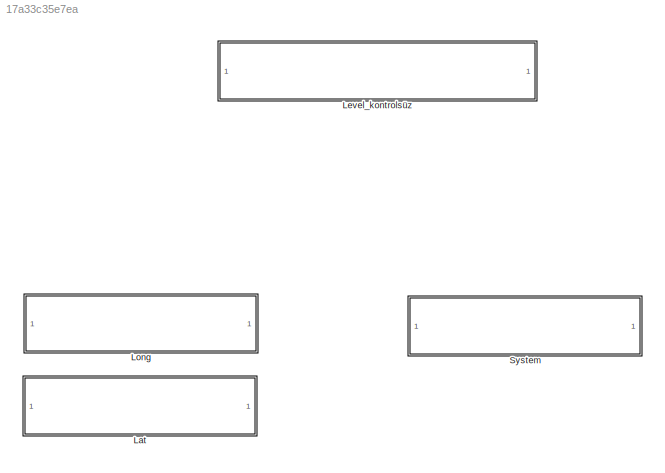
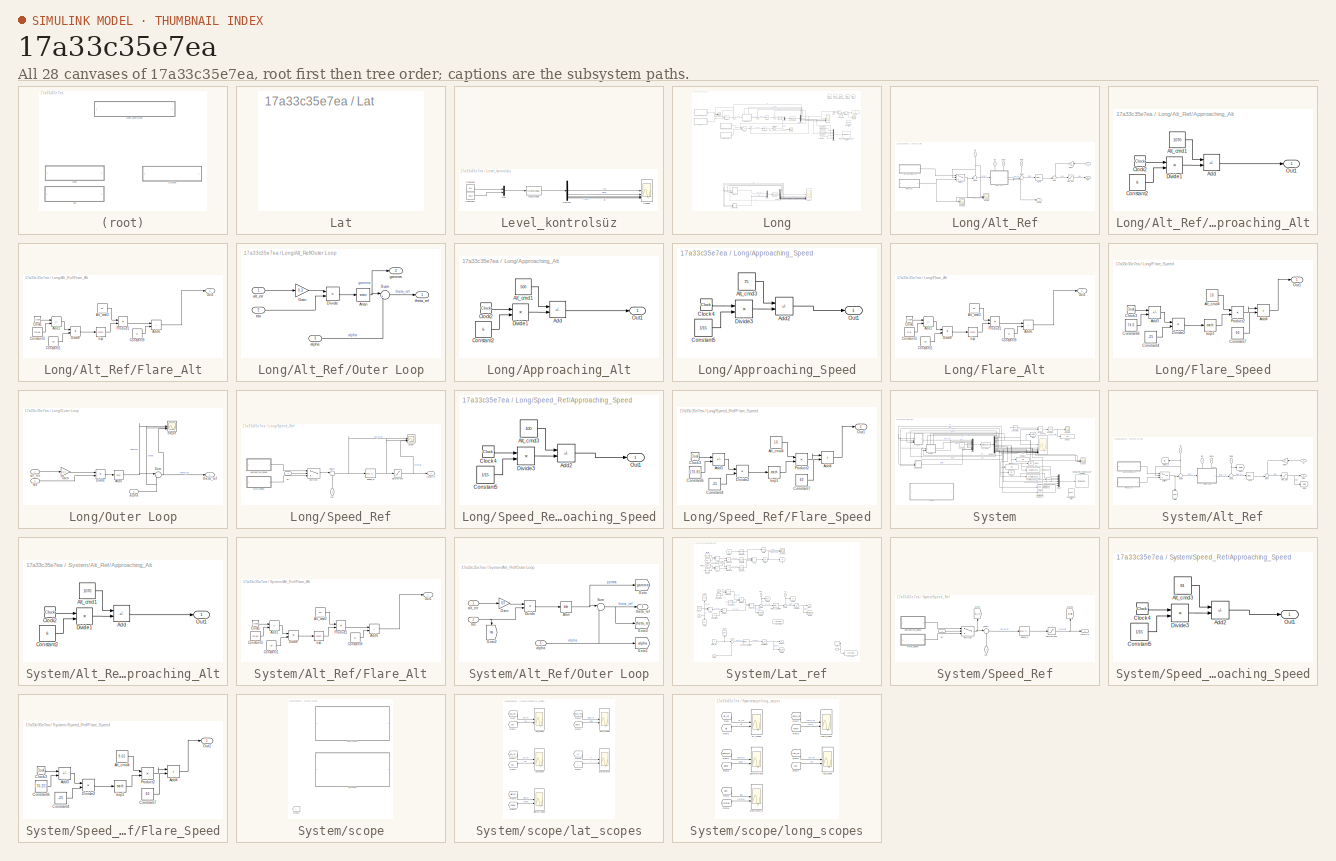
[diagram: thumbnail index - all 28 canvases of the model, root first then tree order]
MODEL slx_17a33c35e7ea
KIND model
CONFIG AbsTol = auto
CONFIG EnableMultiTasking = off
CONFIG FixedStep = auto
CONFIG MaxStep = auto
CONFIG MinStep = auto
CONFIG RelTol = 1e-3
CONFIG SampleTimeConstraint = Unconstrained
CONFIG SolverName = VariableStepAuto
CONFIG StartTime = 0.0
CONFIG StopTime = 240
WORKSPACE source: mxarray member
WORKSPACE Aero: object (value not decoded)
WORKSPACE Cbar = 0.9153
WORKSPACE DamageCase = 1
WORKSPACE DamageModels: object (value not decoded)
WORKSPACE DamageOnsetTime = 10
WORKSPACE DrydenModelSwitch = 0
WORKSPACE FuelUsed_Init = 0
WORKSPACE Inertia0 = [1.221 4.655 5.587 0.274 0 0.006]
WORKSPACE Inertia_shift_gear = [0.0441 0 0.006994 0 0 0]
WORKSPACE Ixx_model = [1.5212259037e-05 -0.000108396795757 0.00107693800873]
WORKSPACE Iyy_model = [3.2526556068e-05 -0.000298176766717 0.00210217323673]
WORKSPACE Izz_model = [-1.9873124706e-05 0.000212146005908 0.00130153198917]
WORKSPACE LandingGear: object (value not decoded)
WORKSPACE LengON = 1
WORKSPACE LinearizeModeOn = 0
WORKSPACE RengON = 1
WORKSPACE S = 5.9018
WORKSPACE SensorNoise: object (value not decoded)
WORKSPACE StatesInp = [161.887900587 -0.043874398319 7.6987961416 -0.744811226382 -0.00663246615276 0.010015704437 0.913189757512 0.0848988711095 200 0.23504860938 0.0855291334445 1.57079632415]
WORKSPACE SurfaceDeadbandOn = 0
WORKSPACE Timestep = 0.005
WORKSPACE TrimModeOn = 0
WORKSPACE TrimWithStab = 0
WORKSPACE WindDir = 270
WORKSPACE WindShearOn = 0
WORKSPACE WindSpd = 0
WORKSPACE aftfuel = 5.74
WORKSPACE aftfuel_pos = [-5.19166666667 0 -1.155]
WORKSPACE b = 6.8488
WORKSPACE bias: object (value not decoded)
WORKSPACE cg_pos0 = [-4.74747447 -0.0118 -0.9761]
WORKSPACE cg_shift_gear = [-0.0025 0 0.015]
WORKSPACE engl_ang = [0 1.98 2.22]
WORKSPACE engl_pos = [-4.32525 -1.18333333333 -0.6425]
WORKSPACE engr_ang = [0 1.95 -1.18]
WORKSPACE engr_pos = [-4.32525 1.18333333333 -0.6425]
WORKSPACE fuel_in_use = 0
WORKSPACE fwdfuel = 5.74
WORKSPACE fwdfuel_pos = [-4.4525 0 -1.155]
WORKSPACE le_mac = 4.5462
WORKSPACE ram_drag_coef = 0.01
WORKSPACE ref_cg = [-4.775025 0 -0.9401]
WORKSPACE runway_alt = 12
WORKSPACE stall_cl_asym_enabled = 0
WORKSPACE symmetric_aero_on = 1
WORKSPACE u_gain_light = 0.2
WORKSPACE u_gain_moderate = 0.4
WORKSPACE u_gain_severe = 0.4
WORKSPACE ugain = 0
WORKSPACE v_gain_light = 0.2
WORKSPACE v_gain_moderate = 0.4
WORKSPACE v_gain_severe = 1.152
WORKSPACE vgain = 0
WORKSPACE w0 = 57.75
WORKSPACE w_gain_light = 0.17
WORKSPACE w_gain_moderate = 0.34
WORKSPACE w_gain_severe = 0.34
WORKSPACE wgain = 0
BLOCK [SubSystem] Lat
  Commented = on
BLOCK [SubSystem] Level_kontrolsüz
  Commented = on
BLOCK [Constant] Level_kontrolsüz/Constant
  Value = 2.41
BLOCK [Constant] Level_kontrolsüz/Constant1
  Value = 39.13
BLOCK [Demux] Level_kontrolsüz/Demux1
  Outputs = 5
BLOCK [StateSpace] Level_kontrolsüz/Long_Model
  A = A_long
  B = B_long
  C = C
  D = D
  InitialCondition = Int_cond
BLOCK [Mux] Level_kontrolsüz/Mux
  DisplayOption = bar
  Inputs = 2
BLOCK [Scope] Level_kontrolsüz/Scope1
  Floating = off
  NumInputPorts = 5
  ScopeSpecificationString = Simulink.scopes.TimeScopeBlockCfg('CurrentConfiguration', extmgr.ConfigurationSet(extmgr.Configuration('Core','General UI',true),extmgr.Configuration('Core','Source UI',true),extmgr.Configuration('Sources','WiredSimulink',true,'DataLoggingVariableName','ScopeData4'),extmgr.Configuration('Visuals','Time Domain',true,'SerializedDisplays',{struct('MinYLimReal','-252.04978','MaxYLimReal','1868.50121',...<+1648ch>
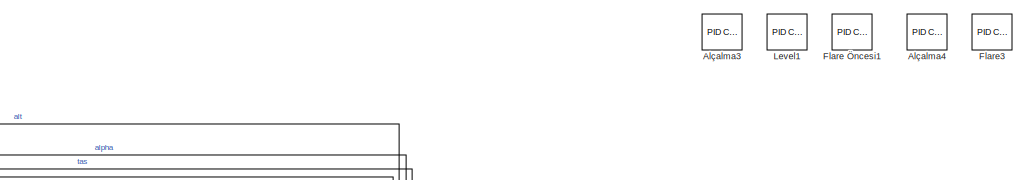
[diagram: Long - part 1/5, top right region]
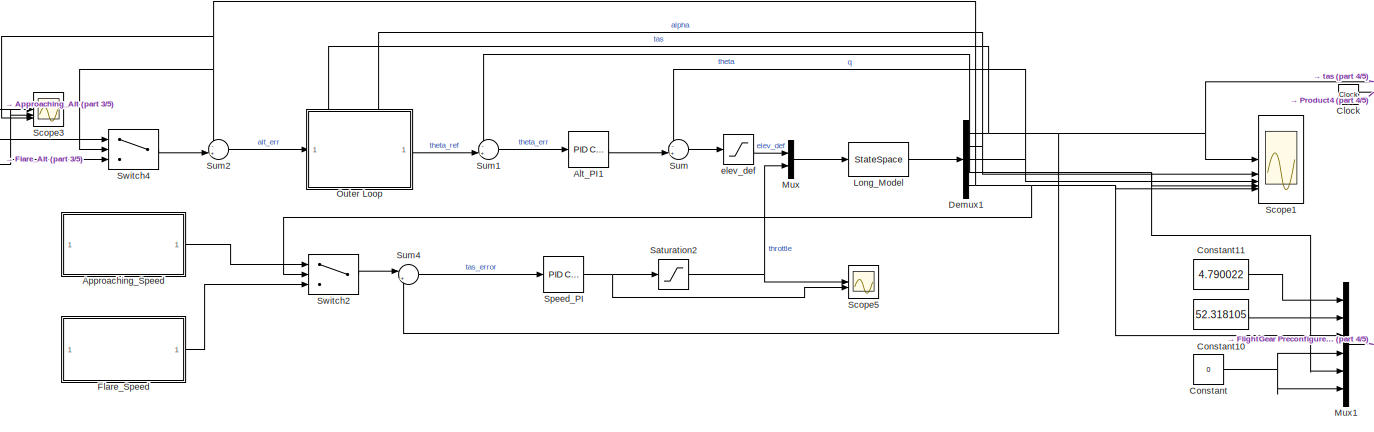
[diagram: Long - part 2/5, top center region]
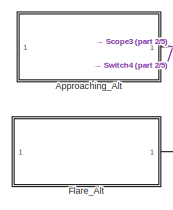
[diagram: Long - part 3/5, top left region]
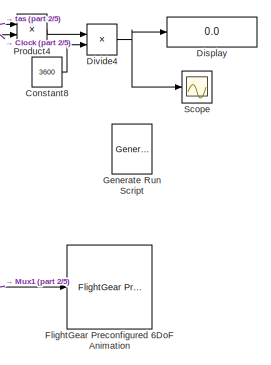
[diagram: Long - part 4/5, top right region]
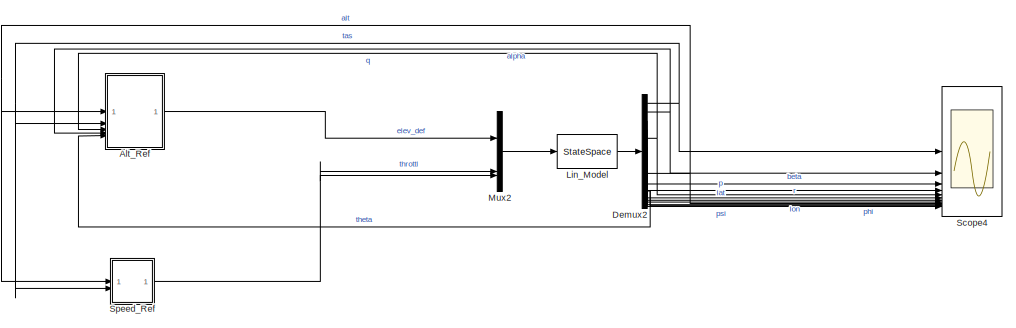
[diagram: Long - part 5/5, bottom center region]
BLOCK [SubSystem] Long
  Commented = on
BLOCK [Reference] Long/Alt_PI1  REF=slpidlib/PID Controller
  LibrarySourceBlock = simulink/Continuous/PID Controller
  SourceBlock = slpidlib/PID Controller
  SourceType = PID 1dof
BLOCK [SubSystem] Long/Alt_Ref
BLOCK [Reference] Long/Alt_Ref/Alt_PI1  REF=slpidlib/PID Controller
  LibrarySourceBlock = simulink/Continuous/PID Controller
  SourceBlock = slpidlib/PID Controller
  SourceType = PID 1dof
BLOCK [SubSystem] Long/Alt_Ref/Approaching_Alt
BLOCK [Sum] Long/Alt_Ref/Approaching_Alt/Add
  IconShape = rectangular
  Inputs = +-
BLOCK [Constant] Long/Alt_Ref/Approaching_Alt/Alt_cmd1
  Value = 1070
BLOCK [Clock] Long/Alt_Ref/Approaching_Alt/Clock2
BLOCK [Constant] Long/Alt_Ref/Approaching_Alt/Constant2
  Value = 6
BLOCK [Product] Long/Alt_Ref/Approaching_Alt/Divide1
  Inputs = **
BLOCK [Outport] Long/Alt_Ref/Approaching_Alt/Out1
BLOCK [SubSystem] Long/Alt_Ref/Flare_Alt
BLOCK [Sum] Long/Alt_Ref/Flare_Alt/Add1
  IconShape = rectangular
  Inputs = +-
BLOCK [Sum] Long/Alt_Ref/Flare_Alt/Add6
  IconShape = rectangular
BLOCK [Constant] Long/Alt_Ref/Flare_Alt/Alt_cmd2
  Value = 50
BLOCK [Clock] Long/Alt_Ref/Flare_Alt/Clock1
BLOCK [Constant] Long/Alt_Ref/Flare_Alt/Constant1
  Value = -20
BLOCK [Constant] Long/Alt_Ref/Flare_Alt/Constant3
  Value = 170.85
BLOCK [Constant] Long/Alt_Ref/Flare_Alt/Constant9
  Value = 12
BLOCK [Product] Long/Alt_Ref/Flare_Alt/Divide
  Inputs = */
BLOCK [Math] Long/Alt_Ref/Flare_Alt/Exp
BLOCK [Outport] Long/Alt_Ref/Flare_Alt/Out1
BLOCK [Product] Long/Alt_Ref/Flare_Alt/Product1
BLOCK [Gain] Long/Alt_Ref/Gain4
  Gain = 2.8
  NameLocation = top
BLOCK [SubSystem] Long/Alt_Ref/Outer Loop
  PortSchema = {"entries":[{"content":{"sides":[{"content":{"connectorIds":["In1"]},"type":"ConnectorPlacement.EquallySpacedRectSide","uuid":"802230e3-f61e-4d95-903b-22dd918cb70d"},{"content":{"connectorIds":["Out1","Out2"],"side":"RIGHT"},"type":"ConnectorPlacement.EquallySpacedRectSide","uuid":"52e280c6-5794-4aff-b44c-3984ed89f6e5"},{"content":{"connectorIds":["In2","In3"],"side":"TOP"},"type":"ConnectorPlacem...<+258ch>
BLOCK [Trigonometry] Long/Alt_Ref/Outer Loop/Atan
  Operator = atan
BLOCK [Product] Long/Alt_Ref/Outer Loop/Divide
  Inputs = */
BLOCK [Gain] Long/Alt_Ref/Outer Loop/Gain
  Gain = 0.3
BLOCK [Sum] Long/Alt_Ref/Outer Loop/Sum
  Inputs = |++
BLOCK [Inport] Long/Alt_Ref/Outer Loop/alpha
  Port = 3
BLOCK [Inport] Long/Alt_Ref/Outer Loop/alt_err
BLOCK [Outport] Long/Alt_Ref/Outer Loop/gamma
  Port = 2
BLOCK [Inport] Long/Alt_Ref/Outer Loop/tas
  Port = 2
BLOCK [Outport] Long/Alt_Ref/Outer Loop/theta_ref
BLOCK [Scope] Long/Alt_Ref/Scope
  Floating = off
  NumInputPorts = 3
  ScopeSpecificationString = Simulink.scopes.TimeScopeBlockCfg('CurrentConfiguration', extmgr.ConfigurationSet(extmgr.Configuration('Core','General UI',true),extmgr.Configuration('Core','Source UI',true),extmgr.Configuration('Sources','WiredSimulink',true,'DataLoggingVariableName','ScopeData4'),extmgr.Configuration('Visuals','Time Domain',true,'SerializedDisplays',{struct('MinYLimReal','-122.73674','MaxYLimReal','1258.25861',...<+2784ch>
BLOCK [Scope] Long/Alt_Ref/Scope1
  Floating = off
  NumInputPorts = 1
  ScopeSpecificationString = Simulink.scopes.TimeScopeBlockCfg('CurrentConfiguration', extmgr.ConfigurationSet(extmgr.Configuration('Core','General UI',true),extmgr.Configuration('Core','Source UI',true),extmgr.Configuration('Sources','WiredSimulink',true,'DataLoggingVariableName','ScopeData5'),extmgr.Configuration('Visuals','Time Domain',true,'SerializedDisplays',{struct('MinYLimReal','-32037.15716','MaxYLimReal','288470.168...<+1451ch>
BLOCK [Sum] Long/Alt_Ref/Sum
  Inputs = -+|
BLOCK [Sum] Long/Alt_Ref/Sum1
  Inputs = -+|
BLOCK [Sum] Long/Alt_Ref/Sum2
  Inputs = -+|
BLOCK [Switch] Long/Alt_Ref/Switch4
  InputSameDT = off
  SaturateOnIntegerOverflow = off
  Threshold = 62
BLOCK [Inport] Long/Alt_Ref/alpha
  NameLocation = left
  Port = 4
BLOCK [Inport] Long/Alt_Ref/alt
  NameLocation = right
BLOCK [Outport] Long/Alt_Ref/elev
BLOCK [Saturate] Long/Alt_Ref/elev_def
  LowerLimit = -30
  UpperLimit = 30
BLOCK [Outport] Long/Alt_Ref/gamma
  Port = 2
BLOCK [Inport] Long/Alt_Ref/q
  NameLocation = top
  Port = 3
BLOCK [Inport] Long/Alt_Ref/tas
  NameLocation = left
  Port = 2
BLOCK [Inport] Long/Alt_Ref/theta
  NameLocation = left
  Port = 5
BLOCK [Reference] Long/Alçalma3  REF=slpidlib/PID Controller
  Commented = on
  LibrarySourceBlock = simulink/Continuous/PID Controller
  SourceBlock = slpidlib/PID Controller
  SourceType = PID 1dof
BLOCK [Reference] Long/Alçalma4  REF=slpidlib/PID Controller
  Commented = on
  LibrarySourceBlock = simulink/Continuous/PID Controller
  SourceBlock = slpidlib/PID Controller
  SourceType = PID 1dof
BLOCK [SubSystem] Long/Approaching_Alt
BLOCK [Sum] Long/Approaching_Alt/Add
  IconShape = rectangular
  Inputs = +-
BLOCK [Constant] Long/Approaching_Alt/Alt_cmd1
  Value = 500
BLOCK [Clock] Long/Approaching_Alt/Clock2
BLOCK [Constant] Long/Approaching_Alt/Constant2
  Value = 6
BLOCK [Product] Long/Approaching_Alt/Divide1
  Inputs = **
BLOCK [Outport] Long/Approaching_Alt/Out1
BLOCK [SubSystem] Long/Approaching_Speed
BLOCK [Sum] Long/Approaching_Speed/Add2
  IconShape = rectangular
  Inputs = +-
BLOCK [Constant] Long/Approaching_Speed/Alt_cmd3
  Value = 75
BLOCK [Clock] Long/Approaching_Speed/Clock4
BLOCK [Constant] Long/Approaching_Speed/Constant5
  Value = 1/15
BLOCK [Product] Long/Approaching_Speed/Divide3
  Inputs = **
BLOCK [Outport] Long/Approaching_Speed/Out1
BLOCK [Clock] Long/Clock
  Commented = on
BLOCK [Constant] Long/Constant
  Commented = on
  Value = 0
BLOCK [Constant] Long/Constant10
  Commented = on
  Value = 52.318105
BLOCK [Constant] Long/Constant11
  Commented = on
  Value = 4.790022
BLOCK [Constant] Long/Constant8
  Commented = on
  Value = 3600
BLOCK [Demux] Long/Demux1
  Outputs = 5
BLOCK [Demux] Long/Demux2
  Outputs = 12
BLOCK [Display] Long/Display
  Commented = on
  Decimation = 1
BLOCK [Product] Long/Divide4
  Commented = on
  Inputs = */
BLOCK [Reference] Long/Flare Öncesi1  REF=slpidlib/PID Controller
  Commented = on
  LibrarySourceBlock = simulink/Continuous/PID Controller
  SourceBlock = slpidlib/PID Controller
  SourceType = PID 1dof
BLOCK [Reference] Long/Flare3  REF=slpidlib/PID Controller
  Commented = on
  LibrarySourceBlock = simulink/Continuous/PID Controller
  SourceBlock = slpidlib/PID Controller
  SourceType = PID 1dof
BLOCK [SubSystem] Long/Flare_Alt
BLOCK [Sum] Long/Flare_Alt/Add1
  IconShape = rectangular
  Inputs = +-
BLOCK [Sum] Long/Flare_Alt/Add6
  IconShape = rectangular
BLOCK [Constant] Long/Flare_Alt/Alt_cmd2
  Value = 50
BLOCK [Clock] Long/Flare_Alt/Clock1
BLOCK [Constant] Long/Flare_Alt/Constant1
  Value = -25
BLOCK [Constant] Long/Flare_Alt/Constant3
  Value = 74.6
BLOCK [Constant] Long/Flare_Alt/Constant9
  Value = 12
BLOCK [Product] Long/Flare_Alt/Divide
  Inputs = */
BLOCK [Math] Long/Flare_Alt/Exp
BLOCK [Outport] Long/Flare_Alt/Out1
BLOCK [Product] Long/Flare_Alt/Product1
BLOCK [SubSystem] Long/Flare_Speed
BLOCK [Sum] Long/Flare_Speed/Add3
  IconShape = rectangular
  Inputs = +-
BLOCK [Sum] Long/Flare_Speed/Add4
  IconShape = rectangular
BLOCK [Constant] Long/Flare_Speed/Alt_cmd4
  Value = 10
BLOCK [Clock] Long/Flare_Speed/Clock3
BLOCK [Constant] Long/Flare_Speed/Constant4
  Value = -25
BLOCK [Constant] Long/Flare_Speed/Constant6
  Value = 74.6
BLOCK [Constant] Long/Flare_Speed/Constant7
  Value = 60
BLOCK [Product] Long/Flare_Speed/Divide2
  Inputs = */
BLOCK [Math] Long/Flare_Speed/Exp1
BLOCK [Outport] Long/Flare_Speed/Out1
BLOCK [Product] Long/Flare_Speed/Product2
BLOCK [Reference] Long/FlightGear Preconfigured 6DoF Animation  REF=aerolibfltsims/FlightGear
Preconfigured
6DoF Animation
  Commented = on
  SourceBlock = aerolibfltsims/FlightGear\nPreconfigured\n6DoF Animation
  SourceType = FlightGearQuick6DoFAnimation
BLOCK [Reference] Long/Generate Run Script  REF=aerolibfltsims/Generate
Run Script
  Commented = on
  SourceBlock = aerolibfltsims/Generate\nRun Script
  SourceType = Generate FlightGear Run Script
BLOCK [Reference] Long/Level1  REF=slpidlib/PID Controller
  Commented = on
  LibrarySourceBlock = simulink/Continuous/PID Controller
  SourceBlock = slpidlib/PID Controller
  SourceType = PID 1dof
BLOCK [StateSpace] Long/Lin_Model
  A = A_lateral
  B = B_lateral
  C = C_lateral
  D = D_lateral
  InitialCondition = Int_cond_lat
BLOCK [StateSpace] Long/Long_Model
  A = A_long
  B = B_long
  C = C
  D = D
  InitialCondition = Int_cond
BLOCK [Mux] Long/Mux
  DisplayOption = bar
  Inputs = 2
BLOCK [Mux] Long/Mux1
  Commented = on
  DisplayOption = bar
  Inputs = 6
BLOCK [Mux] Long/Mux2
  DisplayOption = bar
BLOCK [SubSystem] Long/Outer Loop
  PortSchema = {"entries":[{"content":{"sides":[{"content":{"connectorIds":["In1"]},"type":"ConnectorPlacement.EquallySpacedRectSide","uuid":"7c69ad7c-1d63-415b-9a20-7f2d2fed7bf8"},{"content":{"connectorIds":["Out1"],"side":"RIGHT"},"type":"ConnectorPlacement.EquallySpacedRectSide","uuid":"51c6c3d6-b24f-4b2a-a406-a9d66fa7ab05"},{"content":{"connectorIds":["In2","In3"],"side":"TOP"},"type":"ConnectorPlacement.Equ...<+251ch>
BLOCK [Trigonometry] Long/Outer Loop/Atan
  Operator = atan
BLOCK [Product] Long/Outer Loop/Divide
  Inputs = */
BLOCK [Gain] Long/Outer Loop/Gain
  Gain = 0.3
BLOCK [Scope] Long/Outer Loop/Scope
  Floating = off
  NumInputPorts = 3
  ScopeSpecificationString = Simulink.scopes.TimeScopeBlockCfg('CurrentConfiguration', extmgr.ConfigurationSet(extmgr.Configuration('Core','General UI',true),extmgr.Configuration('Core','Source UI',true),extmgr.Configuration('Sources','WiredSimulink',true,'DataLoggingVariableName','ScopeData1'),extmgr.Configuration('Visuals','Time Domain',true,'SerializedDisplays',{struct('MinYLimReal','-0.16368','MaxYLimReal','0.04109','YLab...<+2838ch>
BLOCK [Sum] Long/Outer Loop/Sum
  Inputs = |++
BLOCK [Inport] Long/Outer Loop/alpha
  Port = 3
BLOCK [Inport] Long/Outer Loop/alt_err
BLOCK [Inport] Long/Outer Loop/tas
  Port = 2
BLOCK [Outport] Long/Outer Loop/theta_ref
BLOCK [Product] Long/Product4
  Commented = on
BLOCK [Saturate] Long/Saturation2
  LowerLimit = 0
  UpperLimit = 100
BLOCK [Scope] Long/Scope
  Commented = on
  Floating = off
  NumInputPorts = 1
  ScopeSpecificationString = Simulink.scopes.TimeScopeBlockCfg('CurrentConfiguration', extmgr.ConfigurationSet(extmgr.Configuration('Core','General UI',true),extmgr.Configuration('Core','Source UI',true),extmgr.Configuration('Sources','WiredSimulink',true,'DataLoggingVariableName','ScopeData1'),extmgr.Configuration('Visuals','Time Domain',true,'SerializedDisplays',{struct('MinYLimReal','-0.41713','MaxYLimReal','3.75418','YLab...<+1391ch>
BLOCK [Scope] Long/Scope1
  Floating = off
  NumInputPorts = 5
  ScopeSpecificationString = Simulink.scopes.TimeScopeBlockCfg('CurrentConfiguration', extmgr.ConfigurationSet(extmgr.Configuration('Core','General UI',true),extmgr.Configuration('Core','Source UI',true),extmgr.Configuration('Sources','WiredSimulink',true,'DataLoggingVariableName','ScopeData1'),extmgr.Configuration('Visuals','Time Domain',true,'SerializedDisplays',{struct('MinYLimReal','-64.69225','MaxYLimReal','578.49078','Y...<+1640ch>
BLOCK [Scope] Long/Scope3
  Floating = off
  NumInputPorts = 3
  ScopeSpecificationString = Simulink.scopes.TimeScopeBlockCfg('CurrentConfiguration', extmgr.ConfigurationSet(extmgr.Configuration('Core','General UI',true),extmgr.Configuration('Core','Source UI',true),extmgr.Configuration('Sources','WiredSimulink',true,'DataLoggingVariableName','ScopeData2'),extmgr.Configuration('Visuals','Time Domain',true,'SerializedDisplays',{struct('MinYLimReal','-912.54204','MaxYLimReal','1212.87832',...<+1481ch>
BLOCK [Scope] Long/Scope4
  Floating = off
  NumInputPorts = 12
  ScopeSpecificationString = Simulink.scopes.TimeScopeBlockCfg('CurrentConfiguration', extmgr.ConfigurationSet(extmgr.Configuration('Core','General UI',true),extmgr.Configuration('Core','Source UI',true),extmgr.Configuration('Sources','WiredSimulink',true,'DataLoggingVariableName','ScopeData11'),extmgr.Configuration('Visuals','Time Domain',true,'SerializedDisplays',{struct('MinYLimReal','-11746.8277','MaxYLimReal','94667.3461...<+1862ch>
BLOCK [Scope] Long/Scope5
  Floating = off
  NumInputPorts = 2
  ScopeSpecificationString = Simulink.scopes.TimeScopeBlockCfg('CurrentConfiguration', extmgr.ConfigurationSet(extmgr.Configuration('Core','General UI',true),extmgr.Configuration('Core','Source UI',true),extmgr.Configuration('Sources','WiredSimulink',true,'DataLoggingVariableName','ScopeData8'),extmgr.Configuration('Visuals','Time Domain',true,'SerializedDisplays',{struct('MinYLimReal','-12.10266','MaxYLimReal','108.92392','Y...<+1461ch>
BLOCK [Reference] Long/Speed_PI  REF=slpidlib/PID Controller
  LibrarySourceBlock = simulink/Continuous/PID Controller
  SourceBlock = slpidlib/PID Controller
  SourceType = PID 1dof
BLOCK [SubSystem] Long/Speed_Ref
BLOCK [SubSystem] Long/Speed_Ref/Approaching_Speed
BLOCK [Sum] Long/Speed_Ref/Approaching_Speed/Add2
  IconShape = rectangular
  Inputs = +-
BLOCK [Constant] Long/Speed_Ref/Approaching_Speed/Alt_cmd3
  Value = 100
BLOCK [Clock] Long/Speed_Ref/Approaching_Speed/Clock4
BLOCK [Constant] Long/Speed_Ref/Approaching_Speed/Constant5
  Value = 1/15
BLOCK [Product] Long/Speed_Ref/Approaching_Speed/Divide3
  Inputs = **
BLOCK [Outport] Long/Speed_Ref/Approaching_Speed/Out1
BLOCK [SubSystem] Long/Speed_Ref/Flare_Speed
BLOCK [Sum] Long/Speed_Ref/Flare_Speed/Add3
  IconShape = rectangular
  Inputs = +-
BLOCK [Sum] Long/Speed_Ref/Flare_Speed/Add4
  IconShape = rectangular
BLOCK [Constant] Long/Speed_Ref/Flare_Speed/Alt_cmd4
  Value = 10
BLOCK [Clock] Long/Speed_Ref/Flare_Speed/Clock3
BLOCK [Constant] Long/Speed_Ref/Flare_Speed/Constant4
  Value = -25
BLOCK [Constant] Long/Speed_Ref/Flare_Speed/Constant6
  Value = 170.85
BLOCK [Constant] Long/Speed_Ref/Flare_Speed/Constant7
  Value = 60
BLOCK [Product] Long/Speed_Ref/Flare_Speed/Divide2
  Inputs = */
BLOCK [Math] Long/Speed_Ref/Flare_Speed/Exp1
BLOCK [Outport] Long/Speed_Ref/Flare_Speed/Out1
BLOCK [Product] Long/Speed_Ref/Flare_Speed/Product2
BLOCK [Saturate] Long/Speed_Ref/Saturation2
  LowerLimit = 0
  UpperLimit = 100
BLOCK [Scope] Long/Speed_Ref/Scope
  Floating = off
  NumInputPorts = 3
  ScopeSpecificationString = Simulink.scopes.TimeScopeBlockCfg('CurrentConfiguration', extmgr.ConfigurationSet(extmgr.Configuration('Core','General UI',true),extmgr.Configuration('Core','Source UI',true),extmgr.Configuration('Sources','WiredSimulink',true,'DataLoggingVariableName','ScopeData1'),extmgr.Configuration('Visuals','Time Domain',true,'SerializedDisplays',{struct('MinYLimReal','-375.01847','MaxYLimReal','155.68187','...<+1479ch>
BLOCK [Reference] Long/Speed_Ref/Speed_PI  REF=slpidlib/PID Controller
  LibrarySourceBlock = simulink/Continuous/PID Controller
  SourceBlock = slpidlib/PID Controller
  SourceType = PID 1dof
BLOCK [Sum] Long/Speed_Ref/Sum4
  Inputs = |+-
BLOCK [Switch] Long/Speed_Ref/Switch2
  InputSameDT = off
  SaturateOnIntegerOverflow = off
  Threshold = 62
BLOCK [Inport] Long/Speed_Ref/alt
BLOCK [Inport] Long/Speed_Ref/tas
  NameLocation = right
  Port = 2
BLOCK [Outport] Long/Speed_Ref/throttle
BLOCK [Sum] Long/Sum
  Inputs = -+|
BLOCK [Sum] Long/Sum1
  Inputs = -+|
BLOCK [Sum] Long/Sum2
  Inputs = -+|
BLOCK [Sum] Long/Sum4
  Inputs = |+-
BLOCK [Switch] Long/Switch2
  InputSameDT = off
  SaturateOnIntegerOverflow = off
  Threshold = 62
BLOCK [Switch] Long/Switch4
  InputSameDT = off
  SaturateOnIntegerOverflow = off
  Threshold = 62
BLOCK [Saturate] Long/elev_def
  LowerLimit = -30
  UpperLimit = 30
BLOCK [SubSystem] System
BLOCK [SubSystem] System/Alt_Ref
BLOCK [Reference] System/Alt_Ref/Alt_PI1  REF=slpidlib/PID Controller
  LibrarySourceBlock = simulink/Continuous/PID Controller
  SourceBlock = slpidlib/PID Controller
  SourceType = PID 1dof
BLOCK [SubSystem] System/Alt_Ref/Approaching_Alt
BLOCK [Sum] System/Alt_Ref/Approaching_Alt/Add
  IconShape = rectangular
  Inputs = +-
BLOCK [Constant] System/Alt_Ref/Approaching_Alt/Alt_cmd1
  Value = 1070
BLOCK [Clock] System/Alt_Ref/Approaching_Alt/Clock2
BLOCK [Constant] System/Alt_Ref/Approaching_Alt/Constant2
  Value = 6
BLOCK [Product] System/Alt_Ref/Approaching_Alt/Divide1
  Inputs = **
BLOCK [Outport] System/Alt_Ref/Approaching_Alt/Out1
BLOCK [SubSystem] System/Alt_Ref/Flare_Alt
BLOCK [Sum] System/Alt_Ref/Flare_Alt/Add1
  IconShape = rectangular
  Inputs = +-
BLOCK [Sum] System/Alt_Ref/Flare_Alt/Add6
  IconShape = rectangular
BLOCK [Constant] System/Alt_Ref/Flare_Alt/Alt_cmd2
  Value = 50
BLOCK [Clock] System/Alt_Ref/Flare_Alt/Clock1
BLOCK [Constant] System/Alt_Ref/Flare_Alt/Constant1
  Value = -20
BLOCK [Constant] System/Alt_Ref/Flare_Alt/Constant3
  Value = 170.85
BLOCK [Constant] System/Alt_Ref/Flare_Alt/Constant9
  Value = 12
BLOCK [Product] System/Alt_Ref/Flare_Alt/Divide
  Inputs = */
BLOCK [Math] System/Alt_Ref/Flare_Alt/Exp
BLOCK [Outport] System/Alt_Ref/Flare_Alt/Out1
BLOCK [Product] System/Alt_Ref/Flare_Alt/Product1
BLOCK [Gain] System/Alt_Ref/Gain4
  Gain = 2.8
  NameLocation = top
BLOCK [Goto] System/Alt_Ref/Goto
  GotoTag = alt_ref
  NameLocation = left
  TagVisibility = global
BLOCK [Goto] System/Alt_Ref/Goto1
  GotoTag = elev
  TagVisibility = global
BLOCK [Goto] System/Alt_Ref/Goto2
  GotoTag = alt
  NameLocation = top
  TagVisibility = global
BLOCK [Goto] System/Alt_Ref/Goto3
  GotoTag = theta
  TagVisibility = global
BLOCK [SubSystem] System/Alt_Ref/Outer Loop
  PortSchema = {"entries":[{"content":{"sides":[{"content":{"connectorIds":["In1"]},"type":"ConnectorPlacement.EquallySpacedRectSide","uuid":"802230e3-f61e-4d95-903b-22dd918cb70d"},{"content":{"connectorIds":["Out1"],"side":"RIGHT"},"type":"ConnectorPlacement.EquallySpacedRectSide","uuid":"52e280c6-5794-4aff-b44c-3984ed89f6e5"},{"content":{"connectorIds":["In2","In3"],"side":"TOP"},"type":"ConnectorPlacement.Equ...<+377ch>
BLOCK [Trigonometry] System/Alt_Ref/Outer Loop/Atan
  Operator = atan
BLOCK [Product] System/Alt_Ref/Outer Loop/Divide
  Inputs = */
BLOCK [Gain] System/Alt_Ref/Outer Loop/Gain
  Gain = 0.3
BLOCK [Goto] System/Alt_Ref/Outer Loop/Goto
  GotoTag = gamma
  TagVisibility = global
BLOCK [Goto] System/Alt_Ref/Outer Loop/Goto1
  GotoTag = alpha
  TagVisibility = global
BLOCK [Goto] System/Alt_Ref/Outer Loop/Goto2
  GotoTag = tas
  NameLocation = left
  TagVisibility = global
BLOCK [Goto] System/Alt_Ref/Outer Loop/Goto3
  GotoTag = theta_ref
  TagVisibility = global
BLOCK [Sum] System/Alt_Ref/Outer Loop/Sum
  Inputs = |++
BLOCK [Inport] System/Alt_Ref/Outer Loop/alpha
  Port = 3
BLOCK [Inport] System/Alt_Ref/Outer Loop/alt_err
BLOCK [Inport] System/Alt_Ref/Outer Loop/tas
  Port = 2
BLOCK [Outport] System/Alt_Ref/Outer Loop/theta_ref
BLOCK [Sum] System/Alt_Ref/Sum
  Inputs = -+|
BLOCK [Sum] System/Alt_Ref/Sum1
  Inputs = -+|
BLOCK [Sum] System/Alt_Ref/Sum2
  Inputs = -+|
BLOCK [Switch] System/Alt_Ref/Switch4
  InputSameDT = off
  SaturateOnIntegerOverflow = off
  Threshold = 62
BLOCK [Inport] System/Alt_Ref/alpha
  NameLocation = left
  Port = 4
BLOCK [Inport] System/Alt_Ref/alt
  NameLocation = right
BLOCK [Outport] System/Alt_Ref/elev
BLOCK [Saturate] System/Alt_Ref/elev_def
  LowerLimit = -30
  UpperLimit = 30
BLOCK [Inport] System/Alt_Ref/q
  NameLocation = top
  Port = 3
BLOCK [Inport] System/Alt_Ref/tas
  NameLocation = left
  Port = 2
BLOCK [Inport] System/Alt_Ref/theta
  NameLocation = left
  Port = 5
BLOCK [Constant] System/Constant
  Value = 0.000277777778
BLOCK [Constant] System/Constant1
  Value = 0
BLOCK [Reference] System/Degrees to Radians  REF=simulink_extras/Transformations/Degrees to
Radians
  SourceBlock = simulink_extras/Transformations/Degrees to\nRadians
  SourceType = DegreesToRadians
BLOCK [Reference] System/Degrees to Radians1  REF=simulink_extras/Transformations/Degrees to
Radians
  SourceBlock = simulink_extras/Transformations/Degrees to\nRadians
  SourceType = DegreesToRadians
BLOCK [Reference] System/Degrees to Radians2  REF=simulink_extras/Transformations/Degrees to
Radians
  SourceBlock = simulink_extras/Transformations/Degrees to\nRadians
  SourceType = DegreesToRadians
BLOCK [Demux] System/Demux1
  Outputs = 12
BLOCK [Display] System/Display
  Decimation = 5
  Format = long
BLOCK [Display] System/Display1
  Decimation = 5
  Format = long
BLOCK [Display] System/Display2
  Decimation = 5
  Format = long
BLOCK [Reference] System/FlightGear Preconfigured 6DoF Animation  REF=aerolibfltsims/FlightGear
Preconfigured
6DoF Animation
  Commented = on
  SourceBlock = aerolibfltsims/FlightGear\nPreconfigured\n6DoF Animation
  SourceType = FlightGearQuick6DoFAnimation
BLOCK [Reference] System/Generate Run Script  REF=aerolibfltsims/Generate
Run Script
  Commented = on
  SourceBlock = aerolibfltsims/Generate\nRun Script
  SourceType = Generate FlightGear Run Script
BLOCK [Goto] System/Goto
  GotoTag = beta
  TagVisibility = global
BLOCK [Goto] System/Goto1
  GotoTag = lat
  TagVisibility = global
BLOCK [Goto] System/Goto2
  GotoTag = lon
  TagVisibility = global
BLOCK [Integrator] System/Integrator
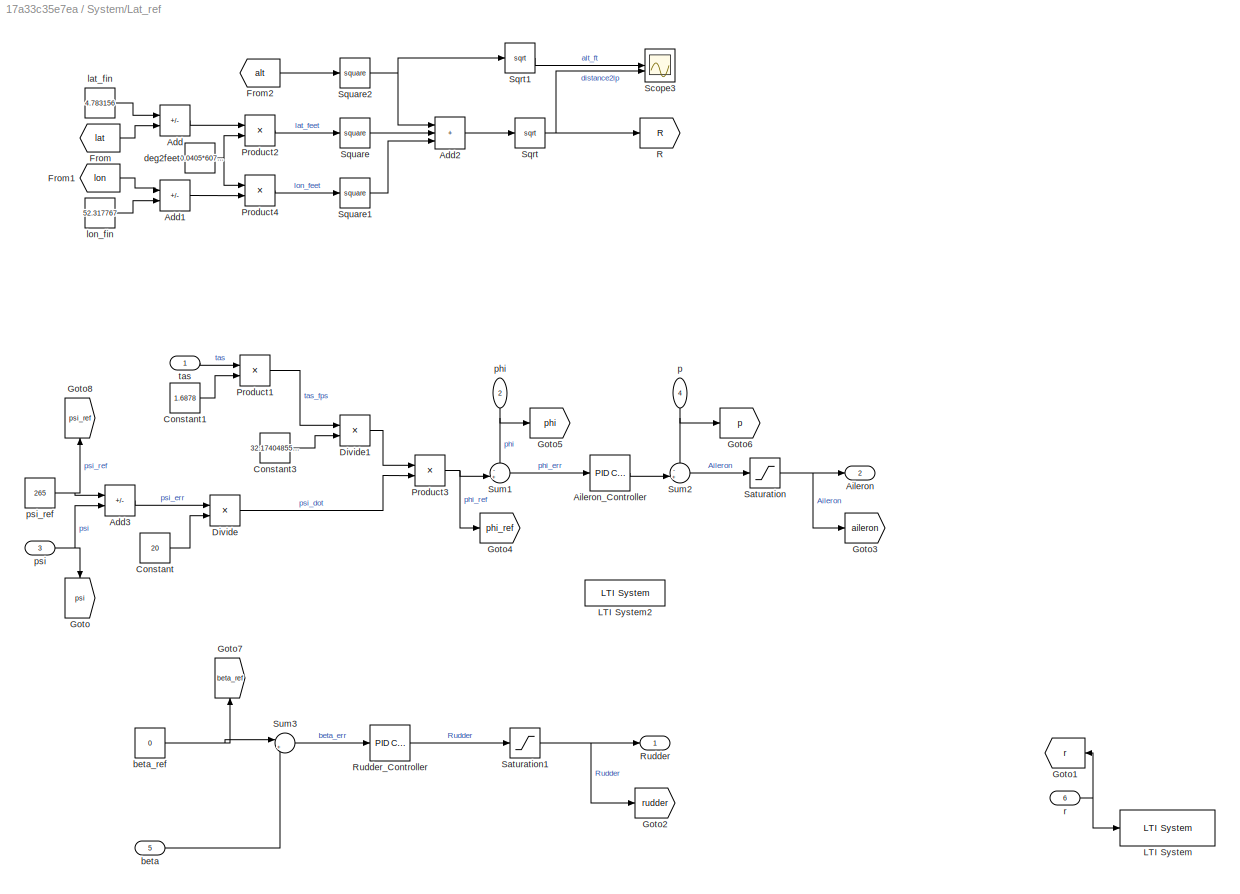
BLOCK [SubSystem] System/Lat_ref
  PortSchema = {"entries":[{"content":{"sides":[{"content":{"connectorIds":["In1","In2","In3"]},"type":"ConnectorPlacement.EquallySpacedRectSide","uuid":"06d8c4da-a9b7-42f9-9a93-c0970d6db228"},{"content":{"connectorIds":["Out1","Out2"],"side":"RIGHT"},"type":"ConnectorPlacement.EquallySpacedRectSide","uuid":"77b94afc-8bea-46af-b3de-c743c34a7faf"},{"content":{"connectorIds":["In4","In5","In6"],"side":"TOP"},"type...<+276ch>
BLOCK [Sum] System/Lat_ref/Add
  IconShape = rectangular
  Inputs = +-
BLOCK [Sum] System/Lat_ref/Add1
  IconShape = rectangular
  Inputs = +-
BLOCK [Sum] System/Lat_ref/Add2
  IconShape = rectangular
  Inputs = +++
BLOCK [Sum] System/Lat_ref/Add3
  IconShape = rectangular
  Inputs = +-
BLOCK [Outport] System/Lat_ref/Aileron
  Port = 2
BLOCK [Reference] System/Lat_ref/Aileron_Controller  REF=slpidlib/PID Controller
  LibrarySourceBlock = simulink/Continuous/PID Controller
  SourceBlock = slpidlib/PID Controller
  SourceType = PID 1dof
BLOCK [Constant] System/Lat_ref/Constant
  Value = 20
BLOCK [Constant] System/Lat_ref/Constant1
  Value = 1.6878
BLOCK [Constant] System/Lat_ref/Constant3
  Value = 32.17404855643
BLOCK [Product] System/Lat_ref/Divide
  Inputs = */
BLOCK [Product] System/Lat_ref/Divide1
  Inputs = */
BLOCK [From] System/Lat_ref/From
  GotoTag = lat
  TagVisibility = global
BLOCK [From] System/Lat_ref/From1
  GotoTag = lon
  TagVisibility = global
BLOCK [From] System/Lat_ref/From2
  GotoTag = alt
  TagVisibility = global
BLOCK [Goto] System/Lat_ref/Goto
  GotoTag = psi
  NameLocation = left
  TagVisibility = global
BLOCK [Goto] System/Lat_ref/Goto1
  GotoTag = r
  NameLocation = top
  TagVisibility = global
BLOCK [Goto] System/Lat_ref/Goto2
  GotoTag = rudder
  TagVisibility = global
BLOCK [Goto] System/Lat_ref/Goto3
  GotoTag = aileron
  TagVisibility = global
BLOCK [Goto] System/Lat_ref/Goto4
  GotoTag = phi_ref
  TagVisibility = global
BLOCK [Goto] System/Lat_ref/Goto5
  GotoTag = phi
  TagVisibility = global
BLOCK [Goto] System/Lat_ref/Goto6
  GotoTag = p
  TagVisibility = global
BLOCK [Goto] System/Lat_ref/Goto7
  GotoTag = beta_ref
  NameLocation = right
  TagVisibility = global
BLOCK [Goto] System/Lat_ref/Goto8
  GotoTag = psi_ref
  NameLocation = right
  TagVisibility = global
BLOCK [Reference] System/Lat_ref/LTI System  REF=cstblocks/LTI System
  SourceBlock = cstblocks/LTI System
  SourceType = LTI Block
BLOCK [Reference] System/Lat_ref/LTI System2  REF=cstblocks/LTI System
  SourceBlock = cstblocks/LTI System
  SourceType = LTI Block
BLOCK [Product] System/Lat_ref/Product1
BLOCK [Product] System/Lat_ref/Product2
BLOCK [Product] System/Lat_ref/Product3
BLOCK [Product] System/Lat_ref/Product4
BLOCK [Goto] System/Lat_ref/R
  GotoTag = R
  TagVisibility = global
BLOCK [Outport] System/Lat_ref/Rudder
BLOCK [Reference] System/Lat_ref/Rudder_Controller  REF=slpidlib/PID Controller
  LibrarySourceBlock = simulink/Continuous/PID Controller
  SourceBlock = slpidlib/PID Controller
  SourceType = PID 1dof
BLOCK [Saturate] System/Lat_ref/Saturation
  LowerLimit = -20
  UpperLimit = 20
BLOCK [Saturate] System/Lat_ref/Saturation1
  LowerLimit = -30
  UpperLimit = 30
BLOCK [Scope] System/Lat_ref/Scope3
  Floating = off
  NumInputPorts = 2
  ScopeSpecificationString = Simulink.scopes.TimeScopeBlockCfg('CurrentConfiguration', extmgr.ConfigurationSet(extmgr.Configuration('Core','General UI',true),extmgr.Configuration('Core','Source UI',true),extmgr.Configuration('Sources','WiredSimulink',true,'DataLoggingVariableName','ScopeData3'),extmgr.Configuration('Visuals','Time Domain',true,'SerializedDisplays',{struct('MinYLimReal','-122.19862','MaxYLimReal','1236.48972',...<+2080ch>
BLOCK [Sqrt] System/Lat_ref/Sqrt
BLOCK [Sqrt] System/Lat_ref/Sqrt1
BLOCK [Math] System/Lat_ref/Square
  Operator = square
BLOCK [Math] System/Lat_ref/Square1
  Operator = square
BLOCK [Math] System/Lat_ref/Square2
  Operator = square
BLOCK [Sum] System/Lat_ref/Sum1
  Inputs = -+|
BLOCK [Sum] System/Lat_ref/Sum2
  Inputs = -+|
BLOCK [Sum] System/Lat_ref/Sum3
  Inputs = |+-
BLOCK [Inport] System/Lat_ref/beta
  Port = 5
BLOCK [Constant] System/Lat_ref/beta_ref
  Value = 0
BLOCK [Constant] System/Lat_ref/deg2feet
  Value = 60.0405*6076.1
BLOCK [Constant] System/Lat_ref/lat_fin
  Value = 4.783156
BLOCK [Constant] System/Lat_ref/lon_fin
  Value = 52.317767
BLOCK [Inport] System/Lat_ref/p
  NameLocation = left
  Port = 4
BLOCK [Inport] System/Lat_ref/phi
  NameLocation = left
  Port = 2
BLOCK [Inport] System/Lat_ref/psi
  Port = 3
BLOCK [Constant] System/Lat_ref/psi_ref
  Value = 265
BLOCK [Inport] System/Lat_ref/r
  Port = 6
BLOCK [Inport] System/Lat_ref/tas
BLOCK [Reference] System/Length Conversion  REF=aerolibconvert2/Length Conversion
  SourceBlock = aerolibconvert2/Length Conversion
  SourceType = Length Conversion
BLOCK [StateSpace] System/Lin_Model
  A = A_sys
  B = B_sys
  C = C_sys
  D = D_sys
  InitialCondition = Int_cond
BLOCK [Mux] System/Mux
  DisplayOption = bar
  Inputs = 9
BLOCK [Mux] System/Mux3
  DisplayOption = bar
  Inputs = 6
BLOCK [Product] System/Product
BLOCK [Scope] System/Scope1
  Floating = off
  NumInputPorts = 12
  ScopeSpecificationString = Simulink.scopes.TimeScopeBlockCfg('CurrentConfiguration', extmgr.ConfigurationSet(extmgr.Configuration('Core','General UI',true),extmgr.Configuration('Core','Source UI',true),extmgr.Configuration('Sources','WiredSimulink',true,'DataLoggingVariableName','ScopeData2'),extmgr.Configuration('Visuals','Time Domain',true,'SerializedDisplays',{struct('MinYLimReal','-145.13858','MaxYLimReal','1239.0386','...<+1846ch>
BLOCK [Scope] System/Scope3
  Floating = off
  NumInputPorts = 1
  ScopeSpecificationString = Simulink.scopes.TimeScopeBlockCfg('CurrentConfiguration', extmgr.ConfigurationSet(extmgr.Configuration('Core','General UI',true),extmgr.Configuration('Core','Source UI',true),extmgr.Configuration('Sources','WiredSimulink',true,'DataLoggingVariableName','ScopeData8'),extmgr.Configuration('Visuals','Time Domain',true,'SerializedDisplays',{struct('MinYLimReal','-0.71109','MaxYLimReal','6.39981','YLab...<+1431ch>
BLOCK [Scope] System/Scope5
  Floating = off
  NumInputPorts = 3
  ScopeSpecificationString = Simulink.scopes.TimeScopeBlockCfg('CurrentConfiguration', extmgr.ConfigurationSet(extmgr.Configuration('Core','General UI',true),extmgr.Configuration('Core','Source UI',true),extmgr.Configuration('Sources','WiredSimulink',true,'DataLoggingVariableName','ScopeData1'),extmgr.Configuration('Visuals','Time Domain',true,'SerializedDisplays',{struct('MinYLimReal','-0.15347','MaxYLimReal','0.03039','YLab...<+2782ch>
BLOCK [SubSystem] System/Speed_Ref
BLOCK [SubSystem] System/Speed_Ref/Approaching_Speed
BLOCK [Sum] System/Speed_Ref/Approaching_Speed/Add2
  IconShape = rectangular
  Inputs = +-
BLOCK [Constant] System/Speed_Ref/Approaching_Speed/Alt_cmd3
  Value = 81
BLOCK [Clock] System/Speed_Ref/Approaching_Speed/Clock4
BLOCK [Constant] System/Speed_Ref/Approaching_Speed/Constant5
  Value = 1/15
BLOCK [Product] System/Speed_Ref/Approaching_Speed/Divide3
  Inputs = **
BLOCK [Outport] System/Speed_Ref/Approaching_Speed/Out1
BLOCK [SubSystem] System/Speed_Ref/Flare_Speed
BLOCK [Sum] System/Speed_Ref/Flare_Speed/Add3
  IconShape = rectangular
  Inputs = +-
BLOCK [Sum] System/Speed_Ref/Flare_Speed/Add4
  IconShape = rectangular
BLOCK [Constant] System/Speed_Ref/Flare_Speed/Alt_cmd4
  Value = 9.65
BLOCK [Clock] System/Speed_Ref/Flare_Speed/Clock3
BLOCK [Constant] System/Speed_Ref/Flare_Speed/Constant4
  Value = -25
BLOCK [Constant] System/Speed_Ref/Flare_Speed/Constant6
  Value = 170.251
BLOCK [Constant] System/Speed_Ref/Flare_Speed/Constant7
  Value = 60
BLOCK [Product] System/Speed_Ref/Flare_Speed/Divide2
  Inputs = */
BLOCK [Math] System/Speed_Ref/Flare_Speed/Exp1
BLOCK [Outport] System/Speed_Ref/Flare_Speed/Out1
BLOCK [Product] System/Speed_Ref/Flare_Speed/Product2
BLOCK [Goto] System/Speed_Ref/Goto
  GotoTag = tas_ref
  NameLocation = right
  TagVisibility = global
BLOCK [Goto] System/Speed_Ref/Goto1
  GotoTag = throttle
  NameLocation = right
  TagVisibility = global
BLOCK [Saturate] System/Speed_Ref/Saturation2
  LowerLimit = 0
  UpperLimit = 100
BLOCK [Reference] System/Speed_Ref/Speed_PI  REF=slpidlib/PID Controller
  LibrarySourceBlock = simulink/Continuous/PID Controller
  SourceBlock = slpidlib/PID Controller
  SourceType = PID 1dof
BLOCK [Sum] System/Speed_Ref/Sum4
  Inputs = |+-
BLOCK [Switch] System/Speed_Ref/Switch2
  InputSameDT = off
  SaturateOnIntegerOverflow = off
  Threshold = 62
BLOCK [Inport] System/Speed_Ref/alt
BLOCK [Inport] System/Speed_Ref/tas
  NameLocation = right
  Port = 2
BLOCK [Outport] System/Speed_Ref/throttle
BLOCK [ToWorkspace] System/To Workspace
  FixptAsFi = on
  MaxDataPoints = inf
  SampleTime = 1
  VariableName = lat_coor
BLOCK [ToWorkspace] System/To Workspace1
  FixptAsFi = on
  MaxDataPoints = inf
  SampleTime = 1
  VariableName = lon_coor
BLOCK [SubSystem] System/scope
BLOCK [From] System/scope/From11
BLOCK [SubSystem] System/scope/lat_scopes
BLOCK [From] System/scope/lat_scopes/From
  GotoTag = phi_ref
  TagVisibility = global
BLOCK [From] System/scope/lat_scopes/From1
  GotoTag = phi
  TagVisibility = global
BLOCK [From] System/scope/lat_scopes/From2
  GotoTag = beta_ref
  TagVisibility = global
BLOCK [From] System/scope/lat_scopes/From3
  GotoTag = beta
  TagVisibility = global
BLOCK [From] System/scope/lat_scopes/From4
  GotoTag = psi_ref
  TagVisibility = global
BLOCK [From] System/scope/lat_scopes/From5
  GotoTag = psi
  TagVisibility = global
BLOCK [From] System/scope/lat_scopes/From6
  GotoTag = p
  TagVisibility = global
BLOCK [From] System/scope/lat_scopes/From7
  GotoTag = r
  TagVisibility = global
BLOCK [From] System/scope/lat_scopes/From8
  GotoTag = aileron
  TagVisibility = global
BLOCK [From] System/scope/lat_scopes/From9
  GotoTag = rudder
  TagVisibility = global
BLOCK [Scope] System/scope/lat_scopes/aileron//rudder
  Floating = off
  NumInputPorts = 2
  ScopeSpecificationString = Simulink.scopes.TimeScopeBlockCfg('CurrentConfiguration', extmgr.ConfigurationSet(extmgr.Configuration('Core','General UI',true),extmgr.Configuration('Core','Source UI',true),extmgr.Configuration('Sources','WiredSimulink',true,'DataLoggingVariableName','ScopeData10'),extmgr.Configuration('Visuals','Time Domain',true,'SerializedDisplays',{struct('MinYLimReal','2.02074','MaxYLimReal','2.95521','YLab...<+2078ch>
BLOCK [Scope] System/scope/lat_scopes/beta_scope
  Floating = off
  NumInputPorts = 2
  ScopeSpecificationString = Simulink.scopes.TimeScopeBlockCfg('CurrentConfiguration', extmgr.ConfigurationSet(extmgr.Configuration('Core','General UI',true),extmgr.Configuration('Core','Source UI',true),extmgr.Configuration('Sources','WiredSimulink',true,'DataLoggingVariableName','ScopeData7'),extmgr.Configuration('Visuals','Time Domain',true,'SerializedDisplays',{struct('MinYLimReal','-0.00153','MaxYLimReal','0.00551','YLab...<+1449ch>
BLOCK [Scope] System/scope/lat_scopes/lateral_rates
  Floating = off
  NumInputPorts = 2
  ScopeSpecificationString = Simulink.scopes.TimeScopeBlockCfg('CurrentConfiguration', extmgr.ConfigurationSet(extmgr.Configuration('Core','General UI',true),extmgr.Configuration('Core','Source UI',true),extmgr.Configuration('Sources','WiredSimulink',true,'DataLoggingVariableName','ScopeData9'),extmgr.Configuration('Visuals','Time Domain',true,'SerializedDisplays',{struct('MinYLimReal','-0.1766','MaxYLimReal','0.18923','YLabe...<+2038ch>
BLOCK [Scope] System/scope/lat_scopes/phi_scope
  Floating = off
  NumInputPorts = 2
  ScopeSpecificationString = Simulink.scopes.TimeScopeBlockCfg('CurrentConfiguration', extmgr.ConfigurationSet(extmgr.Configuration('Core','General UI',true),extmgr.Configuration('Core','Source UI',true),extmgr.Configuration('Sources','WiredSimulink',true,'DataLoggingVariableName','ScopeData6'),extmgr.Configuration('Visuals','Time Domain',true,'SerializedDisplays',{struct('MinYLimReal','-7.56577','MaxYLimReal','0.88331','YLab...<+1702ch>
BLOCK [Scope] System/scope/lat_scopes/psi_scope
  Floating = off
  NumInputPorts = 2
  ScopeSpecificationString = Simulink.scopes.TimeScopeBlockCfg('CurrentConfiguration', extmgr.ConfigurationSet(extmgr.Configuration('Core','General UI',true),extmgr.Configuration('Core','Source UI',true),extmgr.Configuration('Sources','WiredSimulink',true,'DataLoggingVariableName','ScopeData8'),extmgr.Configuration('Visuals','Time Domain',true,'SerializedDisplays',{struct('MinYLimReal','264.98696','MaxYLimReal','265.05506','Y...<+1461ch>
BLOCK [SubSystem] System/scope/long_scopes
BLOCK [From] System/scope/long_scopes/From
  GotoTag = alt_ref
  TagVisibility = global
BLOCK [From] System/scope/long_scopes/From1
  GotoTag = alt
  TagVisibility = global
BLOCK [From] System/scope/long_scopes/From2
  GotoTag = theta_ref
  TagVisibility = global
BLOCK [From] System/scope/long_scopes/From3
  GotoTag = theta
  TagVisibility = global
BLOCK [From] System/scope/long_scopes/From4
  GotoTag = gamma
  TagVisibility = global
BLOCK [From] System/scope/long_scopes/From5
  GotoTag = alpha
  TagVisibility = global
BLOCK [From] System/scope/long_scopes/From6
  GotoTag = tas_ref
  TagVisibility = global
BLOCK [From] System/scope/long_scopes/From7
  GotoTag = tas
  TagVisibility = global
BLOCK [From] System/scope/long_scopes/From8
  GotoTag = elev
  TagVisibility = global
BLOCK [From] System/scope/long_scopes/From9
  GotoTag = throttle
  TagVisibility = global
BLOCK [Scope] System/scope/long_scopes/alt_scope
  Floating = off
  NumInputPorts = 2
  ScopeSpecificationString = Simulink.scopes.TimeScopeBlockCfg('CurrentConfiguration', extmgr.ConfigurationSet(extmgr.Configuration('Core','General UI',true),extmgr.Configuration('Core','Source UI',true),extmgr.Configuration('Sources','WiredSimulink',true,'DataLoggingVariableName','ScopeData1'),extmgr.Configuration('Visuals','Time Domain',true,'SerializedDisplays',{struct('MinYLimReal','-122.30526','MaxYLimReal','1236.50157',...<+1463ch>
BLOCK [Scope] System/scope/long_scopes/elev//throttle
  Floating = off
  NumInputPorts = 2
  ScopeSpecificationString = Simulink.scopes.TimeScopeBlockCfg('CurrentConfiguration', extmgr.ConfigurationSet(extmgr.Configuration('Core','General UI',true),extmgr.Configuration('Core','Source UI',true),extmgr.Configuration('Sources','WiredSimulink',true,'DataLoggingVariableName','ScopeData5'),extmgr.Configuration('Visuals','Time Domain',true,'SerializedDisplays',{struct('MinYLimReal','3.26799','MaxYLimReal','12.71529','YLab...<+2082ch>
BLOCK [Scope] System/scope/long_scopes/gamma//alpha
  Floating = off
  NumInputPorts = 2
  ScopeSpecificationString = Simulink.scopes.TimeScopeBlockCfg('CurrentConfiguration', extmgr.ConfigurationSet(extmgr.Configuration('Core','General UI',true),extmgr.Configuration('Core','Source UI',true),extmgr.Configuration('Sources','WiredSimulink',true,'DataLoggingVariableName','ScopeData3'),extmgr.Configuration('Visuals','Time Domain',true,'SerializedDisplays',{struct('MinYLimReal','-0.068','MaxYLimReal','0.01406','YLabel...<+2044ch>
BLOCK [Scope] System/scope/long_scopes/tas_scope
  Floating = off
  NumInputPorts = 2
  ScopeSpecificationString = Simulink.scopes.TimeScopeBlockCfg('CurrentConfiguration', extmgr.ConfigurationSet(extmgr.Configuration('Core','General UI',true),extmgr.Configuration('Core','Source UI',true),extmgr.Configuration('Sources','WiredSimulink',true,'DataLoggingVariableName','ScopeData4'),extmgr.Configuration('Visuals','Time Domain',true,'SerializedDisplays',{struct('MinYLimReal','62.64285','MaxYLimReal','69.40047','YLa...<+1451ch>
BLOCK [Scope] System/scope/long_scopes/theta_scope
  Floating = off
  NumInputPorts = 2
  ScopeSpecificationString = Simulink.scopes.TimeScopeBlockCfg('CurrentConfiguration', extmgr.ConfigurationSet(extmgr.Configuration('Core','General UI',true),extmgr.Configuration('Core','Source UI',true),extmgr.Configuration('Sources','WiredSimulink',true,'DataLoggingVariableName','ScopeData2'),extmgr.Configuration('Visuals','Time Domain',true,'SerializedDisplays',{struct('MinYLimReal','-0.3941','MaxYLimReal','-0.1519','YLabe...<+1447ch>
LINE Level_kontrolsüz/Constant1:1 -> Level_kontrolsüz/Mux:2
LINE Level_kontrolsüz/Constant:1 -> Level_kontrolsüz/Mux:1
LINE Level_kontrolsüz/Demux1:1 -> Level_kontrolsüz/Scope1:1
LINE Level_kontrolsüz/Demux1:2 -> Level_kontrolsüz/Scope1:2
LINE Level_kontrolsüz/Demux1:3 -> Level_kontrolsüz/Scope1:3
LINE Level_kontrolsüz/Demux1:4 -> Level_kontrolsüz/Scope1:4
LINE Level_kontrolsüz/Demux1:5 -> Level_kontrolsüz/Scope1:5
LINE Level_kontrolsüz/Long_Model:1 -> Level_kontrolsüz/Demux1:1
LINE Level_kontrolsüz/Mux:1 -> Level_kontrolsüz/Long_Model:1
LINE Long/Alt_PI1:1 -> Long/Sum:2
LINE Long/Alt_Ref/Alt_PI1:1 -> Long/Alt_Ref/Sum:2
LINE Long/Alt_Ref/Approaching_Alt/Add:1 -> Long/Alt_Ref/Approaching_Alt/Out1:1
LINE Long/Alt_Ref/Approaching_Alt/Alt_cmd1:1 -> Long/Alt_Ref/Approaching_Alt/Add:1
LINE Long/Alt_Ref/Approaching_Alt/Clock2:1 -> Long/Alt_Ref/Approaching_Alt/Divide1:1
LINE Long/Alt_Ref/Approaching_Alt/Constant2:1 -> Long/Alt_Ref/Approaching_Alt/Divide1:2
LINE Long/Alt_Ref/Approaching_Alt/Divide1:1 -> Long/Alt_Ref/Approaching_Alt/Add:2
LINE Long/Alt_Ref/Approaching_Alt:1 -> Long/Alt_Ref/Switch4:1
LINE Long/Alt_Ref/Flare_Alt/Add1:1 -> Long/Alt_Ref/Flare_Alt/Divide:1
LINE Long/Alt_Ref/Flare_Alt/Add6:1 -> Long/Alt_Ref/Flare_Alt/Out1:1
LINE Long/Alt_Ref/Flare_Alt/Alt_cmd2:1 -> Long/Alt_Ref/Flare_Alt/Product1:1
LINE Long/Alt_Ref/Flare_Alt/Clock1:1 -> Long/Alt_Ref/Flare_Alt/Add1:1
LINE Long/Alt_Ref/Flare_Alt/Constant1:1 -> Long/Alt_Ref/Flare_Alt/Divide:2
LINE Long/Alt_Ref/Flare_Alt/Constant3:1 -> Long/Alt_Ref/Flare_Alt/Add1:2
LINE Long/Alt_Ref/Flare_Alt/Constant9:1 -> Long/Alt_Ref/Flare_Alt/Add6:2
LINE Long/Alt_Ref/Flare_Alt/Divide:1 -> Long/Alt_Ref/Flare_Alt/Exp:1
LINE Long/Alt_Ref/Flare_Alt/Exp:1 -> Long/Alt_Ref/Flare_Alt/Product1:2
LINE Long/Alt_Ref/Flare_Alt/Product1:1 -> Long/Alt_Ref/Flare_Alt/Add6:1
NET Long/Alt_Ref/Flare_Alt:1 -> Long/Alt_Ref/Scope1:1, Long/Alt_Ref/Scope:3, Long/Alt_Ref/Switch4:3
LINE Long/Alt_Ref/Gain4:1 -> Long/Alt_Ref/Sum:1
NET Long/Alt_Ref/Outer Loop/Atan:1 -> Long/Alt_Ref/Outer Loop/Sum:1, Long/Alt_Ref/Outer Loop/gamma:1
LINE Long/Alt_Ref/Outer Loop/Divide:1 -> Long/Alt_Ref/Outer Loop/Atan:1
LINE Long/Alt_Ref/Outer Loop/Gain:1 -> Long/Alt_Ref/Outer Loop/Divide:1
LINE Long/Alt_Ref/Outer Loop/Sum:1 -> Long/Alt_Ref/Outer Loop/theta_ref:1
LINE Long/Alt_Ref/Outer Loop/alpha:1 -> Long/Alt_Ref/Outer Loop/Sum:2
LINE Long/Alt_Ref/Outer Loop/alt_err:1 -> Long/Alt_Ref/Outer Loop/Gain:1
LINE Long/Alt_Ref/Outer Loop/tas:1 -> Long/Alt_Ref/Outer Loop/Divide:2
LINE Long/Alt_Ref/Outer Loop:1 -> Long/Alt_Ref/Sum1:2
LINE Long/Alt_Ref/Outer Loop:2 -> Long/Alt_Ref/gamma:1
LINE Long/Alt_Ref/Sum1:1 -> Long/Alt_Ref/Alt_PI1:1
LINE Long/Alt_Ref/Sum2:1 -> Long/Alt_Ref/Outer Loop:1
LINE Long/Alt_Ref/Sum:1 -> Long/Alt_Ref/elev_def:1
NET Long/Alt_Ref/Switch4:1 -> Long/Alt_Ref/Scope:2, Long/Alt_Ref/Sum2:2
LINE Long/Alt_Ref/alpha:1 -> Long/Alt_Ref/Outer Loop:3
NET Long/Alt_Ref/alt:1 -> Long/Alt_Ref/Scope:1, Long/Alt_Ref/Sum2:1, Long/Alt_Ref/Switch4:2
LINE Long/Alt_Ref/elev_def:1 -> Long/Alt_Ref/elev:1
LINE Long/Alt_Ref/q:1 -> Long/Alt_Ref/Gain4:1
LINE Long/Alt_Ref/tas:1 -> Long/Alt_Ref/Outer Loop:2
LINE Long/Alt_Ref/theta:1 -> Long/Alt_Ref/Sum1:1
LINE Long/Alt_Ref:1 -> Long/Mux2:1
LINE Long/Approaching_Alt/Add:1 -> Long/Approaching_Alt/Out1:1
LINE Long/Approaching_Alt/Alt_cmd1:1 -> Long/Approaching_Alt/Add:1
LINE Long/Approaching_Alt/Clock2:1 -> Long/Approaching_Alt/Divide1:1
LINE Long/Approaching_Alt/Constant2:1 -> Long/Approaching_Alt/Divide1:2
LINE Long/Approaching_Alt/Divide1:1 -> Long/Approaching_Alt/Add:2
NET Long/Approaching_Alt:1 -> Long/Scope3:1, Long/Switch4:1
LINE Long/Approaching_Speed/Add2:1 -> Long/Approaching_Speed/Out1:1
LINE Long/Approaching_Speed/Alt_cmd3:1 -> Long/Approaching_Speed/Add2:1
LINE Long/Approaching_Speed/Clock4:1 -> Long/Approaching_Speed/Divide3:1
LINE Long/Approaching_Speed/Constant5:1 -> Long/Approaching_Speed/Divide3:2
LINE Long/Approaching_Speed/Divide3:1 -> Long/Approaching_Speed/Add2:2
LINE Long/Approaching_Speed:1 -> Long/Switch2:1
LINE Long/Clock:1 -> Long/Product4:2
LINE Long/Constant10:1 -> Long/Mux1:2
LINE Long/Constant11:1 -> Long/Mux1:1
LINE Long/Constant8:1 -> Long/Divide4:2
NET Long/Constant:1 -> Long/Mux1:4, Long/Mux1:6
NET Long/Demux1:1 -> Long/Outer Loop:2, Long/Product4:1, Long/Scope1:1, Long/Sum4:2
NET Long/Demux1:2 -> Long/Outer Loop:3, Long/Scope1:2
NET Long/Demux1:3 -> Long/Scope1:3, Long/Sum:1
NET Long/Demux1:4 -> Long/Mux1:5, Long/Scope1:4, Long/Sum1:1
NET Long/Demux1:5 -> Long/Mux1:3, Long/Scope1:5, Long/Scope3:3, Long/Sum2:1, Long/Switch2:2, Long/Switch4:2
NET Long/Demux2:1 -> Long/Alt_Ref:2, Long/Scope4:1, Long/Speed_Ref:2
LINE Long/Demux2:10 -> Long/Scope4:10
NET Long/Demux2:11 -> Long/Alt_Ref:5, Long/Scope4:11
LINE Long/Demux2:12 -> Long/Scope4:12
NET Long/Demux2:2 -> Long/Alt_Ref:4, Long/Scope4:2
LINE Long/Demux2:3 -> Long/Scope4:3
LINE Long/Demux2:4 -> Long/Scope4:4
NET Long/Demux2:5 -> Long/Alt_Ref:3, Long/Scope4:5
LINE Long/Demux2:6 -> Long/Scope4:6
LINE Long/Demux2:7 -> Long/Scope4:7
LINE Long/Demux2:8 -> Long/Scope4:8
NET Long/Demux2:9 -> Long/Alt_Ref:1, Long/Scope4:9, Long/Speed_Ref:1
NET Long/Divide4:1 -> Long/Display:1, Long/Scope:1
LINE Long/Flare_Alt/Add1:1 -> Long/Flare_Alt/Divide:1
LINE Long/Flare_Alt/Add6:1 -> Long/Flare_Alt/Out1:1
LINE Long/Flare_Alt/Alt_cmd2:1 -> Long/Flare_Alt/Product1:1
LINE Long/Flare_Alt/Clock1:1 -> Long/Flare_Alt/Add1:1
LINE Long/Flare_Alt/Constant1:1 -> Long/Flare_Alt/Divide:2
LINE Long/Flare_Alt/Constant3:1 -> Long/Flare_Alt/Add1:2
LINE Long/Flare_Alt/Constant9:1 -> Long/Flare_Alt/Add6:2
LINE Long/Flare_Alt/Divide:1 -> Long/Flare_Alt/Exp:1
LINE Long/Flare_Alt/Exp:1 -> Long/Flare_Alt/Product1:2
LINE Long/Flare_Alt/Product1:1 -> Long/Flare_Alt/Add6:1
NET Long/Flare_Alt:1 -> Long/Scope3:2, Long/Switch4:3
LINE Long/Flare_Speed/Add3:1 -> Long/Flare_Speed/Divide2:1
LINE Long/Flare_Speed/Add4:1 -> Long/Flare_Speed/Out1:1
LINE Long/Flare_Speed/Alt_cmd4:1 -> Long/Flare_Speed/Product2:1
LINE Long/Flare_Speed/Clock3:1 -> Long/Flare_Speed/Add3:1
LINE Long/Flare_Speed/Constant4:1 -> Long/Flare_Speed/Divide2:2
LINE Long/Flare_Speed/Constant6:1 -> Long/Flare_Speed/Add3:2
LINE Long/Flare_Speed/Constant7:1 -> Long/Flare_Speed/Add4:2
LINE Long/Flare_Speed/Divide2:1 -> Long/Flare_Speed/Exp1:1
LINE Long/Flare_Speed/Exp1:1 -> Long/Flare_Speed/Product2:2
LINE Long/Flare_Speed/Product2:1 -> Long/Flare_Speed/Add4:1
LINE Long/Flare_Speed:1 -> Long/Switch2:3
LINE Long/Lin_Model:1 -> Long/Demux2:1
LINE Long/Long_Model:1 -> Long/Demux1:1
LINE Long/Mux1:1 -> Long/FlightGear Preconfigured 6DoF Animation:1
LINE Long/Mux2:1 -> Long/Lin_Model:1
LINE Long/Mux:1 -> Long/Long_Model:1
NET Long/Outer Loop/Atan:1 -> Long/Outer Loop/Scope:1, Long/Outer Loop/Sum:1
LINE Long/Outer Loop/Divide:1 -> Long/Outer Loop/Atan:1
LINE Long/Outer Loop/Gain:1 -> Long/Outer Loop/Divide:1
NET Long/Outer Loop/Sum:1 -> Long/Outer Loop/Scope:3, Long/Outer Loop/theta_ref:1
NET Long/Outer Loop/alpha:1 -> Long/Outer Loop/Scope:2, Long/Outer Loop/Sum:2
LINE Long/Outer Loop/alt_err:1 -> Long/Outer Loop/Gain:1
LINE Long/Outer Loop/tas:1 -> Long/Outer Loop/Divide:2
LINE Long/Outer Loop:1 -> Long/Sum1:2
LINE Long/Product4:1 -> Long/Divide4:1
NET Long/Saturation2:1 -> Long/Mux:2, Long/Scope5:1
NET Long/Speed_PI:1 -> Long/Saturation2:1, Long/Scope5:2
LINE Long/Speed_Ref/Approaching_Speed/Add2:1 -> Long/Speed_Ref/Approaching_Speed/Out1:1
LINE Long/Speed_Ref/Approaching_Speed/Alt_cmd3:1 -> Long/Speed_Ref/Approaching_Speed/Add2:1
LINE Long/Speed_Ref/Approaching_Speed/Clock4:1 -> Long/Speed_Ref/Approaching_Speed/Divide3:1
LINE Long/Speed_Ref/Approaching_Speed/Constant5:1 -> Long/Speed_Ref/Approaching_Speed/Divide3:2
LINE Long/Speed_Ref/Approaching_Speed/Divide3:1 -> Long/Speed_Ref/Approaching_Speed/Add2:2
LINE Long/Speed_Ref/Approaching_Speed:1 -> Long/Speed_Ref/Switch2:1
LINE Long/Speed_Ref/Flare_Speed/Add3:1 -> Long/Speed_Ref/Flare_Speed/Divide2:1
LINE Long/Speed_Ref/Flare_Speed/Add4:1 -> Long/Speed_Ref/Flare_Speed/Out1:1
LINE Long/Speed_Ref/Flare_Speed/Alt_cmd4:1 -> Long/Speed_Ref/Flare_Speed/Product2:1
LINE Long/Speed_Ref/Flare_Speed/Clock3:1 -> Long/Speed_Ref/Flare_Speed/Add3:1
LINE Long/Speed_Ref/Flare_Speed/Constant4:1 -> Long/Speed_Ref/Flare_Speed/Divide2:2
LINE Long/Speed_Ref/Flare_Speed/Constant6:1 -> Long/Speed_Ref/Flare_Speed/Add3:2
LINE Long/Speed_Ref/Flare_Speed/Constant7:1 -> Long/Speed_Ref/Flare_Speed/Add4:2
LINE Long/Speed_Ref/Flare_Speed/Divide2:1 -> Long/Speed_Ref/Flare_Speed/Exp1:1
LINE Long/Speed_Ref/Flare_Speed/Exp1:1 -> Long/Speed_Ref/Flare_Speed/Product2:2
LINE Long/Speed_Ref/Flare_Speed/Product2:1 -> Long/Speed_Ref/Flare_Speed/Add4:1
LINE Long/Speed_Ref/Flare_Speed:1 -> Long/Speed_Ref/Switch2:3
NET Long/Speed_Ref/Saturation2:1 -> Long/Speed_Ref/Scope:3, Long/Speed_Ref/throttle:1
NET Long/Speed_Ref/Speed_PI:1 -> Long/Speed_Ref/Saturation2:1, Long/Speed_Ref/Scope:2
NET Long/Speed_Ref/Sum4:1 -> Long/Speed_Ref/Scope:1, Long/Speed_Ref/Speed_PI:1
LINE Long/Speed_Ref/Switch2:1 -> Long/Speed_Ref/Sum4:1
LINE Long/Speed_Ref/alt:1 -> Long/Speed_Ref/Switch2:2
LINE Long/Speed_Ref/tas:1 -> Long/Speed_Ref/Sum4:2
NET Long/Speed_Ref:1 -> Long/Mux2:3, Long/Mux2:4
LINE Long/Sum1:1 -> Long/Alt_PI1:1
LINE Long/Sum2:1 -> Long/Outer Loop:1
LINE Long/Sum4:1 -> Long/Speed_PI:1
LINE Long/Sum:1 -> Long/elev_def:1
LINE Long/Switch2:1 -> Long/Sum4:1
LINE Long/Switch4:1 -> Long/Sum2:2
LINE Long/elev_def:1 -> Long/Mux:1
LINE System/Alt_Ref/Alt_PI1:1 -> System/Alt_Ref/Sum:2
LINE System/Alt_Ref/Approaching_Alt/Add:1 -> System/Alt_Ref/Approaching_Alt/Out1:1
LINE System/Alt_Ref/Approaching_Alt/Alt_cmd1:1 -> System/Alt_Ref/Approaching_Alt/Add:1
LINE System/Alt_Ref/Approaching_Alt/Clock2:1 -> System/Alt_Ref/Approaching_Alt/Divide1:1
LINE System/Alt_Ref/Approaching_Alt/Constant2:1 -> System/Alt_Ref/Approaching_Alt/Divide1:2
LINE System/Alt_Ref/Approaching_Alt/Divide1:1 -> System/Alt_Ref/Approaching_Alt/Add:2
LINE System/Alt_Ref/Approaching_Alt:1 -> System/Alt_Ref/Switch4:1
LINE System/Alt_Ref/Flare_Alt/Add1:1 -> System/Alt_Ref/Flare_Alt/Divide:1
LINE System/Alt_Ref/Flare_Alt/Add6:1 -> System/Alt_Ref/Flare_Alt/Out1:1
LINE System/Alt_Ref/Flare_Alt/Alt_cmd2:1 -> System/Alt_Ref/Flare_Alt/Product1:1
LINE System/Alt_Ref/Flare_Alt/Clock1:1 -> System/Alt_Ref/Flare_Alt/Add1:1
LINE System/Alt_Ref/Flare_Alt/Constant1:1 -> System/Alt_Ref/Flare_Alt/Divide:2
LINE System/Alt_Ref/Flare_Alt/Constant3:1 -> System/Alt_Ref/Flare_Alt/Add1:2
LINE System/Alt_Ref/Flare_Alt/Constant9:1 -> System/Alt_Ref/Flare_Alt/Add6:2
LINE System/Alt_Ref/Flare_Alt/Divide:1 -> System/Alt_Ref/Flare_Alt/Exp:1
LINE System/Alt_Ref/Flare_Alt/Exp:1 -> System/Alt_Ref/Flare_Alt/Product1:2
LINE System/Alt_Ref/Flare_Alt/Product1:1 -> System/Alt_Ref/Flare_Alt/Add6:1
LINE System/Alt_Ref/Flare_Alt:1 -> System/Alt_Ref/Switch4:3
LINE System/Alt_Ref/Gain4:1 -> System/Alt_Ref/Sum:1
NET System/Alt_Ref/Outer Loop/Atan:1 -> System/Alt_Ref/Outer Loop/Goto:1, System/Alt_Ref/Outer Loop/Sum:1
LINE System/Alt_Ref/Outer Loop/Divide:1 -> System/Alt_Ref/Outer Loop/Atan:1
LINE System/Alt_Ref/Outer Loop/Gain:1 -> System/Alt_Ref/Outer Loop/Divide:1
NET System/Alt_Ref/Outer Loop/Sum:1 -> System/Alt_Ref/Outer Loop/Goto3:1, System/Alt_Ref/Outer Loop/theta_ref:1
NET System/Alt_Ref/Outer Loop/alpha:1 -> System/Alt_Ref/Outer Loop/Goto1:1, System/Alt_Ref/Outer Loop/Sum:2
LINE System/Alt_Ref/Outer Loop/alt_err:1 -> System/Alt_Ref/Outer Loop/Gain:1
NET System/Alt_Ref/Outer Loop/tas:1 -> System/Alt_Ref/Outer Loop/Divide:2, System/Alt_Ref/Outer Loop/Goto2:1
LINE System/Alt_Ref/Outer Loop:1 -> System/Alt_Ref/Sum1:2
LINE System/Alt_Ref/Sum1:1 -> System/Alt_Ref/Alt_PI1:1
LINE System/Alt_Ref/Sum2:1 -> System/Alt_Ref/Outer Loop:1
LINE System/Alt_Ref/Sum:1 -> System/Alt_Ref/elev_def:1
NET System/Alt_Ref/Switch4:1 -> System/Alt_Ref/Goto:1, System/Alt_Ref/Sum2:2
LINE System/Alt_Ref/alpha:1 -> System/Alt_Ref/Outer Loop:3
NET System/Alt_Ref/alt:1 -> System/Alt_Ref/Goto2:1, System/Alt_Ref/Sum2:1, System/Alt_Ref/Switch4:2
NET System/Alt_Ref/elev_def:1 -> System/Alt_Ref/Goto1:1, System/Alt_Ref/elev:1
LINE System/Alt_Ref/q:1 -> System/Alt_Ref/Gain4:1
LINE System/Alt_Ref/tas:1 -> System/Alt_Ref/Outer Loop:2
NET System/Alt_Ref/theta:1 -> System/Alt_Ref/Goto3:1, System/Alt_Ref/Sum1:1
LINE System/Alt_Ref:1 -> System/Mux:1
NET System/Constant1:1 -> System/Mux:4, System/Mux:5, System/Mux:6, System/Mux:7
LINE System/Constant:1 -> System/Product:1
LINE System/Degrees to Radians1:1 -> System/Mux3:5
LINE System/Degrees to Radians2:1 -> System/Mux3:6
LINE System/Degrees to Radians:1 -> System/Mux3:4
NET System/Demux1:1 -> System/Alt_Ref:2, System/Lat_ref:1, System/Product:2, System/Scope1:1, System/Speed_Ref:2
NET System/Demux1:10 -> System/Degrees to Radians:1, System/Lat_ref:2, System/Scope1:10, System/Scope5:2
NET System/Demux1:11 -> System/Alt_Ref:5, System/Degrees to Radians1:1, System/Scope1:11
NET System/Demux1:12 -> System/Degrees to Radians2:1, System/Lat_ref:3, System/Scope1:12, System/Scope5:3
NET System/Demux1:2 -> System/Alt_Ref:4, System/Scope1:2
NET System/Demux1:3 -> System/Goto:1, System/Lat_ref:5, System/Scope1:3, System/Scope5:1
NET System/Demux1:4 -> System/Lat_ref:4, System/Scope1:4
NET System/Demux1:5 -> System/Alt_Ref:3, System/Scope1:5
NET System/Demux1:6 -> System/Lat_ref:6, System/Scope1:6
NET System/Demux1:7 -> System/Display2:1, System/Goto1:1, System/Mux3:1, System/Scope1:7, System/To Workspace:1
NET System/Demux1:8 -> System/Display1:1, System/Goto2:1, System/Mux3:2, System/Scope1:8, System/To Workspace1:1
NET System/Demux1:9 -> System/Alt_Ref:1, System/Length Conversion:1, System/Scope1:9, System/Speed_Ref:1
NET System/Integrator:1 -> System/Display:1, System/Scope3:1
LINE System/Lat_ref/Add1:1 -> System/Lat_ref/Product4:2
LINE System/Lat_ref/Add2:1 -> System/Lat_ref/Sqrt:1
LINE System/Lat_ref/Add3:1 -> System/Lat_ref/Divide:1
LINE System/Lat_ref/Add:1 -> System/Lat_ref/Product2:1
LINE System/Lat_ref/Aileron_Controller:1 -> System/Lat_ref/Sum2:2
LINE System/Lat_ref/Constant1:1 -> System/Lat_ref/Product1:2
LINE System/Lat_ref/Constant3:1 -> System/Lat_ref/Divide1:2
LINE System/Lat_ref/Constant:1 -> System/Lat_ref/Divide:2
LINE System/Lat_ref/Divide1:1 -> System/Lat_ref/Product3:1
LINE System/Lat_ref/Divide:1 -> System/Lat_ref/Product3:2
LINE System/Lat_ref/From1:1 -> System/Lat_ref/Add1:1
LINE System/Lat_ref/From2:1 -> System/Lat_ref/Square2:1
LINE System/Lat_ref/From:1 -> System/Lat_ref/Add:2
LINE System/Lat_ref/Product1:1 -> System/Lat_ref/Divide1:1
LINE System/Lat_ref/Product2:1 -> System/Lat_ref/Square:1
NET System/Lat_ref/Product3:1 -> System/Lat_ref/Goto4:1, System/Lat_ref/Sum1:2
LINE System/Lat_ref/Product4:1 -> System/Lat_ref/Square1:1
LINE System/Lat_ref/Rudder_Controller:1 -> System/Lat_ref/Saturation1:1
NET System/Lat_ref/Saturation1:1 -> System/Lat_ref/Goto2:1, System/Lat_ref/Rudder:1
NET System/Lat_ref/Saturation:1 -> System/Lat_ref/Aileron:1, System/Lat_ref/Goto3:1
LINE System/Lat_ref/Sqrt1:1 -> System/Lat_ref/Scope3:1
NET System/Lat_ref/Sqrt:1 -> System/Lat_ref/R:1, System/Lat_ref/Scope3:2
LINE System/Lat_ref/Square1:1 -> System/Lat_ref/Add2:3
NET System/Lat_ref/Square2:1 -> System/Lat_ref/Add2:1, System/Lat_ref/Sqrt1:1
LINE System/Lat_ref/Square:1 -> System/Lat_ref/Add2:2
LINE System/Lat_ref/Sum1:1 -> System/Lat_ref/Aileron_Controller:1
LINE System/Lat_ref/Sum2:1 -> System/Lat_ref/Saturation:1
LINE System/Lat_ref/Sum3:1 -> System/Lat_ref/Rudder_Controller:1
LINE System/Lat_ref/beta:1 -> System/Lat_ref/Sum3:2
NET System/Lat_ref/beta_ref:1 -> System/Lat_ref/Goto7:1, System/Lat_ref/Sum3:1
NET System/Lat_ref/deg2feet:1 -> System/Lat_ref/Product2:2, System/Lat_ref/Product4:1
LINE System/Lat_ref/lat_fin:1 -> System/Lat_ref/Add:1
LINE System/Lat_ref/lon_fin:1 -> System/Lat_ref/Add1:2
NET System/Lat_ref/p:1 -> System/Lat_ref/Goto6:1, System/Lat_ref/Sum2:1
NET System/Lat_ref/phi:1 -> System/Lat_ref/Goto5:1, System/Lat_ref/Sum1:1
NET System/Lat_ref/psi:1 -> System/Lat_ref/Add3:2, System/Lat_ref/Goto:1
NET System/Lat_ref/psi_ref:1 -> System/Lat_ref/Add3:1, System/Lat_ref/Goto8:1
NET System/Lat_ref/r:1 -> System/Lat_ref/Goto1:1, System/Lat_ref/LTI System:1
LINE System/Lat_ref/tas:1 -> System/Lat_ref/Product1:1
LINE System/Lat_ref:1 -> System/Mux:3
LINE System/Lat_ref:2 -> System/Mux:2
LINE System/Length Conversion:1 -> System/Mux3:3
LINE System/Lin_Model:1 -> System/Demux1:1
LINE System/Mux3:1 -> System/FlightGear Preconfigured 6DoF Animation:1
LINE System/Mux:1 -> System/Lin_Model:1
LINE System/Product:1 -> System/Integrator:1
LINE System/Speed_Ref/Approaching_Speed/Add2:1 -> System/Speed_Ref/Approaching_Speed/Out1:1
LINE System/Speed_Ref/Approaching_Speed/Alt_cmd3:1 -> System/Speed_Ref/Approaching_Speed/Add2:1
LINE System/Speed_Ref/Approaching_Speed/Clock4:1 -> System/Speed_Ref/Approaching_Speed/Divide3:1
LINE System/Speed_Ref/Approaching_Speed/Constant5:1 -> System/Speed_Ref/Approaching_Speed/Divide3:2
LINE System/Speed_Ref/Approaching_Speed/Divide3:1 -> System/Speed_Ref/Approaching_Speed/Add2:2
LINE System/Speed_Ref/Approaching_Speed:1 -> System/Speed_Ref/Switch2:1
LINE System/Speed_Ref/Flare_Speed/Add3:1 -> System/Speed_Ref/Flare_Speed/Divide2:1
LINE System/Speed_Ref/Flare_Speed/Add4:1 -> System/Speed_Ref/Flare_Speed/Out1:1
LINE System/Speed_Ref/Flare_Speed/Alt_cmd4:1 -> System/Speed_Ref/Flare_Speed/Product2:1
LINE System/Speed_Ref/Flare_Speed/Clock3:1 -> System/Speed_Ref/Flare_Speed/Add3:1
LINE System/Speed_Ref/Flare_Speed/Constant4:1 -> System/Speed_Ref/Flare_Speed/Divide2:2
LINE System/Speed_Ref/Flare_Speed/Constant6:1 -> System/Speed_Ref/Flare_Speed/Add3:2
LINE System/Speed_Ref/Flare_Speed/Constant7:1 -> System/Speed_Ref/Flare_Speed/Add4:2
LINE System/Speed_Ref/Flare_Speed/Divide2:1 -> System/Speed_Ref/Flare_Speed/Exp1:1
LINE System/Speed_Ref/Flare_Speed/Exp1:1 -> System/Speed_Ref/Flare_Speed/Product2:2
LINE System/Speed_Ref/Flare_Speed/Product2:1 -> System/Speed_Ref/Flare_Speed/Add4:1
LINE System/Speed_Ref/Flare_Speed:1 -> System/Speed_Ref/Switch2:3
NET System/Speed_Ref/Saturation2:1 -> System/Speed_Ref/Goto1:1, System/Speed_Ref/throttle:1
LINE System/Speed_Ref/Speed_PI:1 -> System/Speed_Ref/Saturation2:1
LINE System/Speed_Ref/Sum4:1 -> System/Speed_Ref/Speed_PI:1
NET System/Speed_Ref/Switch2:1 -> System/Speed_Ref/Goto:1, System/Speed_Ref/Sum4:1
LINE System/Speed_Ref/alt:1 -> System/Speed_Ref/Switch2:2
LINE System/Speed_Ref/tas:1 -> System/Speed_Ref/Sum4:2
NET System/Speed_Ref:1 -> System/Mux:8, System/Mux:9
LINE System/scope/lat_scopes/From1:1 -> System/scope/lat_scopes/phi_scope:2
LINE System/scope/lat_scopes/From2:1 -> System/scope/lat_scopes/beta_scope:1
LINE System/scope/lat_scopes/From3:1 -> System/scope/lat_scopes/beta_scope:2
LINE System/scope/lat_scopes/From4:1 -> System/scope/lat_scopes/psi_scope:1
LINE System/scope/lat_scopes/From5:1 -> System/scope/lat_scopes/psi_scope:2
LINE System/scope/lat_scopes/From6:1 -> System/scope/lat_scopes/lateral_rates:1
LINE System/scope/lat_scopes/From7:1 -> System/scope/lat_scopes/lateral_rates:2
LINE System/scope/lat_scopes/From8:1 -> System/scope/lat_scopes/aileron//rudder:1
LINE System/scope/lat_scopes/From9:1 -> System/scope/lat_scopes/aileron//rudder:2
LINE System/scope/lat_scopes/From:1 -> System/scope/lat_scopes/phi_scope:1
LINE System/scope/long_scopes/From1:1 -> System/scope/long_scopes/alt_scope:2
LINE System/scope/long_scopes/From2:1 -> System/scope/long_scopes/theta_scope:1
LINE System/scope/long_scopes/From3:1 -> System/scope/long_scopes/theta_scope:2
LINE System/scope/long_scopes/From4:1 -> System/scope/long_scopes/gamma//alpha:1
LINE System/scope/long_scopes/From5:1 -> System/scope/long_scopes/gamma//alpha:2
LINE System/scope/long_scopes/From6:1 -> System/scope/long_scopes/tas_scope:1
LINE System/scope/long_scopes/From7:1 -> System/scope/long_scopes/tas_scope:2
LINE System/scope/long_scopes/From8:1 -> System/scope/long_scopes/elev//throttle:1
LINE System/scope/long_scopes/From9:1 -> System/scope/long_scopes/elev//throttle:2
LINE System/scope/long_scopes/From:1 -> System/scope/long_scopes/alt_scope:1
note: NET lines group one-source signal fan-out (src -> all destinations, sorted); 1:1 wires keep LINE
